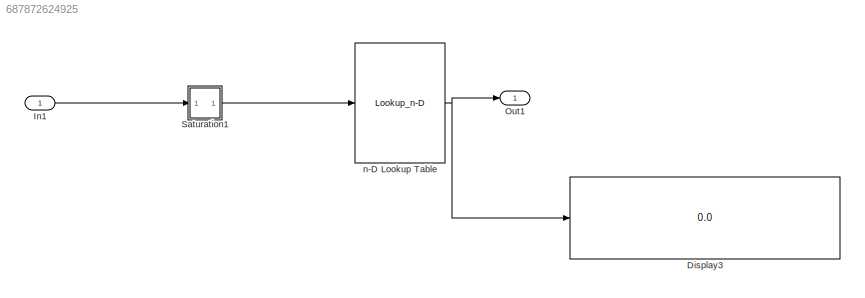
MODEL slx_687872624925
KIND model
CONFIG AbsTol = auto
CONFIG EnableMultiTasking = on
CONFIG FixedStep = 0.200000
CONFIG MaxStep = auto
CONFIG MinStep = auto
CONFIG RelTol = 1e-3
CONFIG SampleTimeConstraint = Unconstrained
CONFIG Solver = FixedStepDiscrete
CONFIG SolverName = FixedStepDiscrete
CONFIG StartTime = 0.0
CONFIG StopTime = 10.0
BLOCK [Display] Display3
  Decimation = 1
  Ports = [1]
BLOCK [Inport] In1
  IconDisplay = Port number
BLOCK [Outport] Out1
  IconDisplay = Port number
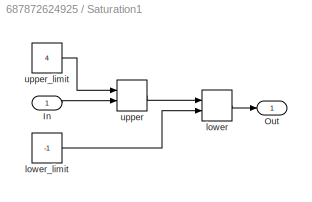
BLOCK [SubSystem] Saturation1
  MinAlgLoopOccurrences = on
  Ports = [1, 1]
  RequestExecContextInheritance = off
  TreatAsAtomicUnit = on
  Variant = off
BLOCK [Inport] Saturation1/In
  IconDisplay = Port number
BLOCK [Outport] Saturation1/Out
  IconDisplay = Port number
BLOCK [MinMax] Saturation1/lower
  Function = max
  InputSameDT = off
  Inputs = 2
  Ports = [2, 1]
  SaturateOnIntegerOverflow = off
BLOCK [Constant] Saturation1/lower_limit
  SampleTime = -1
  Value = -1
BLOCK [MinMax] Saturation1/upper
  InputSameDT = off
  Inputs = 2
  Ports = [2, 1]
  SaturateOnIntegerOverflow = off
BLOCK [Constant] Saturation1/upper_limit
  SampleTime = -1
  Value = 4
BLOCK [Lookup_n-D] n-D Lookup Table
  BreakpointsForDimension1 = [0 1.5 2.2  3.1]
  BreakpointsForDimension2 = [4 5 6]
  BreakpointsForDimension3 = [5 6]
  InternalRulePriority = Speed
  InterpMethod = Nearest
  NumberOfTableDimensions = 1
  Ports = [1, 1]
  RndMeth = Simplest
  Table = [10 110 120 230]
  UseOneInputPortForAllInputData = on
LINE In1:1 -> Saturation1:1
LINE Saturation1/In:1 -> Saturation1/upper:2
LINE Saturation1/lower:1 -> Saturation1/Out:1
LINE Saturation1/lower_limit:1 -> Saturation1/lower:2
LINE Saturation1/upper:1 -> Saturation1/lower:1
LINE Saturation1/upper_limit:1 -> Saturation1/upper:1
LINE Saturation1:1 -> n-D Lookup Table:1
NET n-D Lookup Table:1 -> Display3:1, Out1:1
note: NET lines group one-source signal fan-out (src -> all destinations, sorted); 1:1 wires keep LINE
